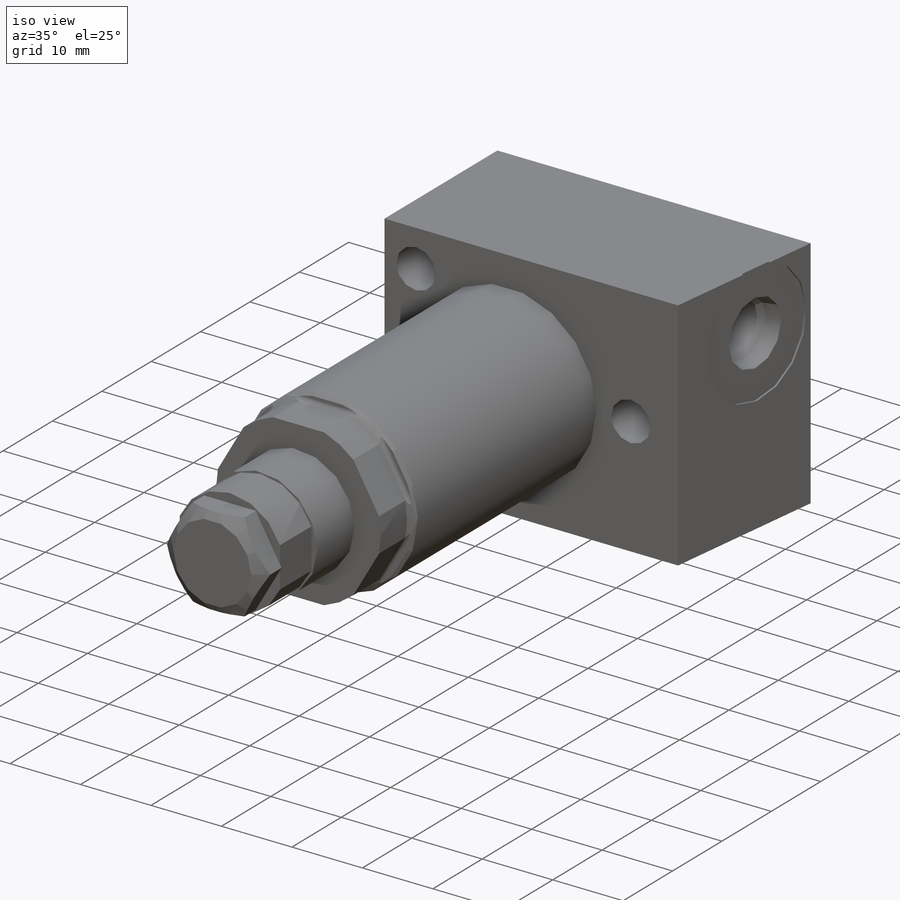
[diagram: iso view]
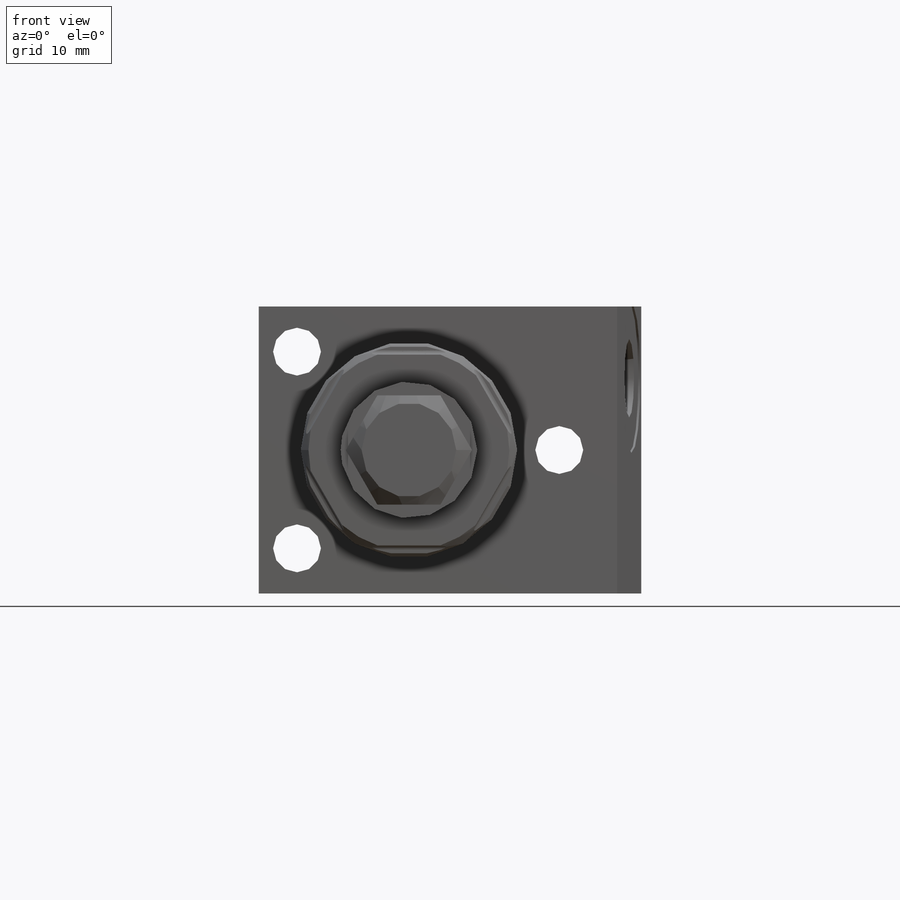
[diagram: front view]
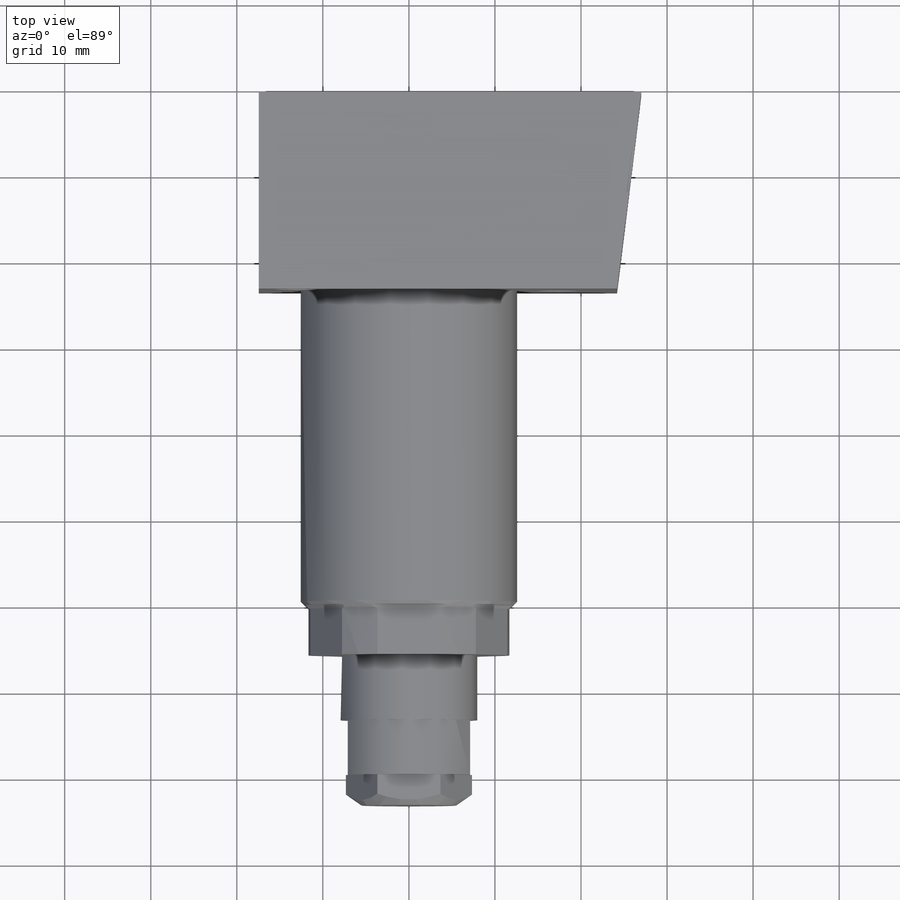
[diagram: top view]
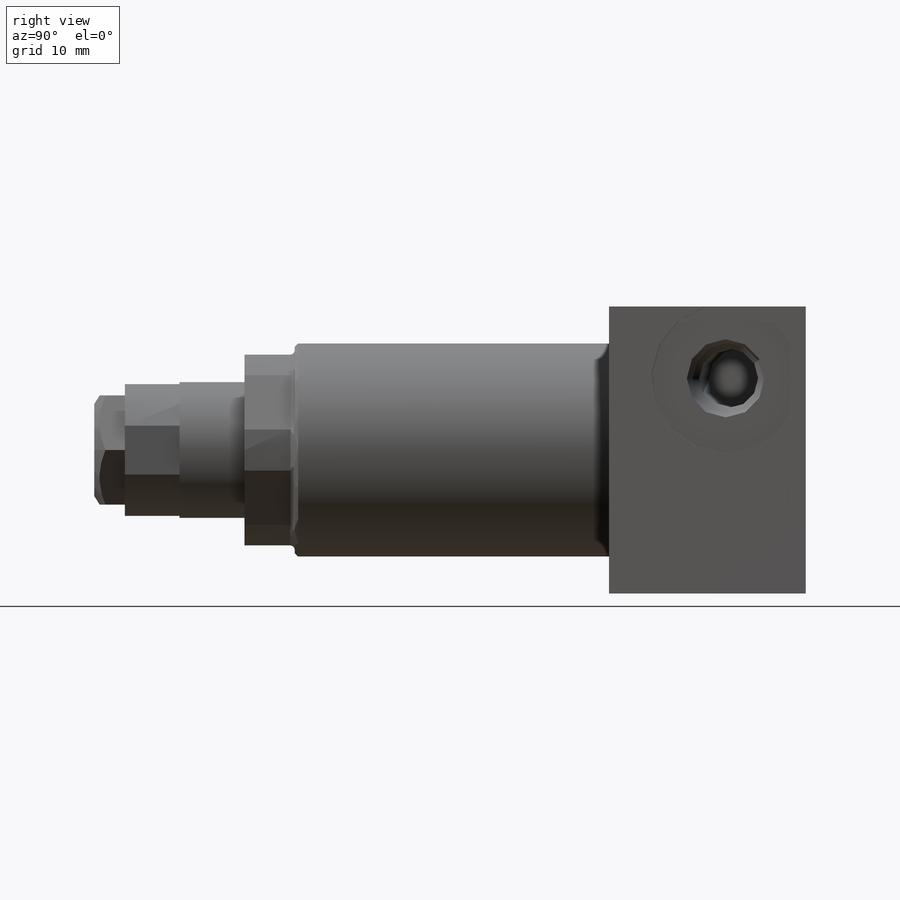
[diagram: right view]
SOLIDWORKS PART (.sldprt)
format: sldprt  version: not decoded by parser v0  size: 432,128 bytes
history: native  units: mm
features: sketch x15, plane x10, cut_revolve x5, extrude x3, cut_extrude x3, revolve x2, material x1, pattern_circular x1, hole x1 (+11 scaffold rows collapsed)
feature tree (52):
  scaffold x11  (default folders/planes/origin — collapsed)
  material  "Alloy Steel"
  plane  "Plane1"
  sketch  "Sketch1"  dims[D1=25.146mm]
  extrude  "Extrude1"  Depth=55.8292mm
  plane  "Plane2"
  sketch  "Sketch2"  dims[D2=0.508mm D1=22.1742mm D3=5.842mm]
  cut_extrude  "Cut-Extrude1"  Depth=30.1752mm
  plane  "Plane12"
  sketch  "Sketch10"  dims[c1.D1=5.334mm c1.D2=23.3426mm c1.D3=~1.275196mm c2.D3=45.0deg]
  cut_revolve  "Cut-Revolve1"  Angle=360deg
  plane  "Plane14"
  sketch  "Sketch12"  dims[D1=13.8938mm D2=15.875mm]
  revolve  "Revolve1"  Angle=360deg
  plane  "Plane16"
  sketch  "Sketch15"  dims[D2=7.9375mm D3=7.9375mm D1=14.224mm]
  cut_extrude  "Cut-Extrude10"  Depth=6.35mm
  sketch  "Sketch16"  dims[D1=12.7mm]
  extrude  "Extrude2"  Depth=3.556mm
  plane  "Plane18"
  sketch  "Sketch17"  dims[c1.D1=~2.237983mm c2.D1=35.0deg c2.D2=10.9982mm]
  cut_revolve  "Cut-Revolve4"  Angle=360deg
  plane  "Plane19"
  sketch  "Sketch18"  dims[c1.D1=9.398mm c1.D2=22.86mm c1.D3=17.4498mm c1.D4=44.45mm c1.D5=22.86mm c2.D5=83.0deg]
  extrude  "Extrude3"  Depth=16.6751mm
  sketch  "Sketch19"
  cut_extrude  "Cut-Extrude11"  Depth=0.254mm
  plane  "Plane20"
  sketch  "S2D0001"  dims[D1=12.192mm]
  cut_revolve  "Cut-Revolve5"  Angle=360deg
  plane  "Plane21"
  sketch  "Sketch21"
  cut_revolve  "Cut-Revolve6"  Angle=360deg
  plane  "Plane22"
  sketch  "Sketch22"
  revolve  "Revolve2"  Angle=360deg
  pattern_circular  "CirPattern2"  Count=6 Angle=360deg
  hole  "Hole1"  Diameter=5.5626mm Depth=22.86mm
  sketch  "Sketch24"  dims[D1=17.4752mm D2=22.86mm D3=13.0048mm]
  sketch  "Sketch23"  dims[Diameter=5.5626mm Depth=22.86mm]
  sketch  "Sketch27"  dims[D1=6.35mm D2=15.3162mm]
  cut_revolve  "Cut-Revolve7"  Angle=360deg
decode coverage: 27 of 30 modeling features carry decoded parameters
note: ~ marks probable driven/reference dimensions
note: suppression state not decoded; provenance and decode notes live in map.json
